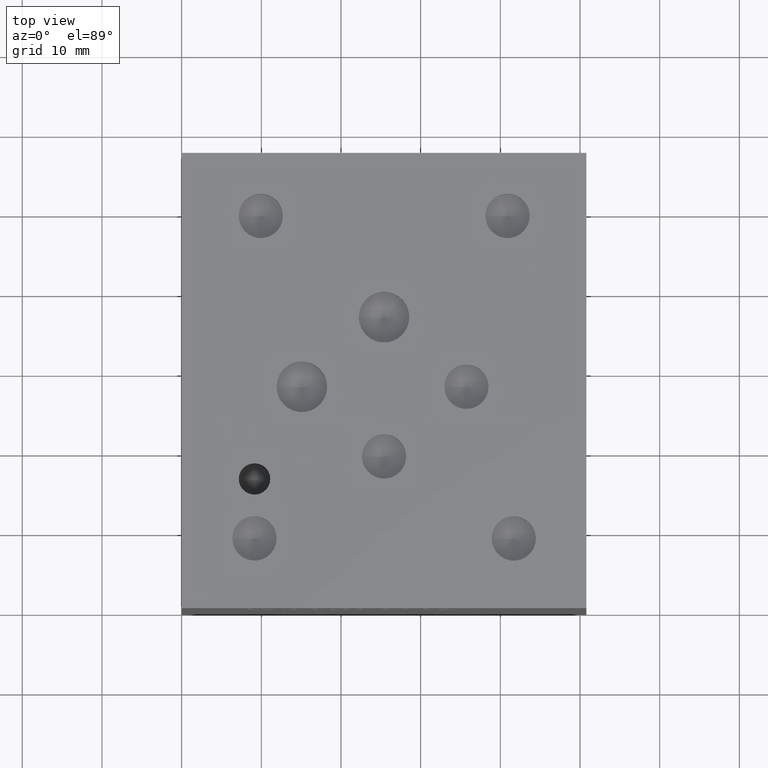
[diagram: clean part render]
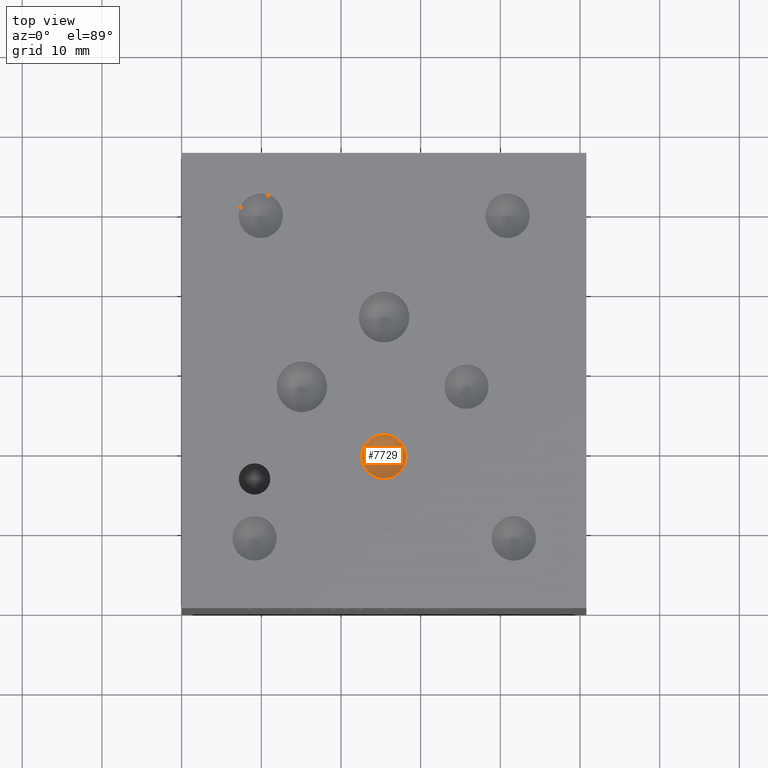
[diagram: same view with one face highlighted and labeled with its STEP entity id]
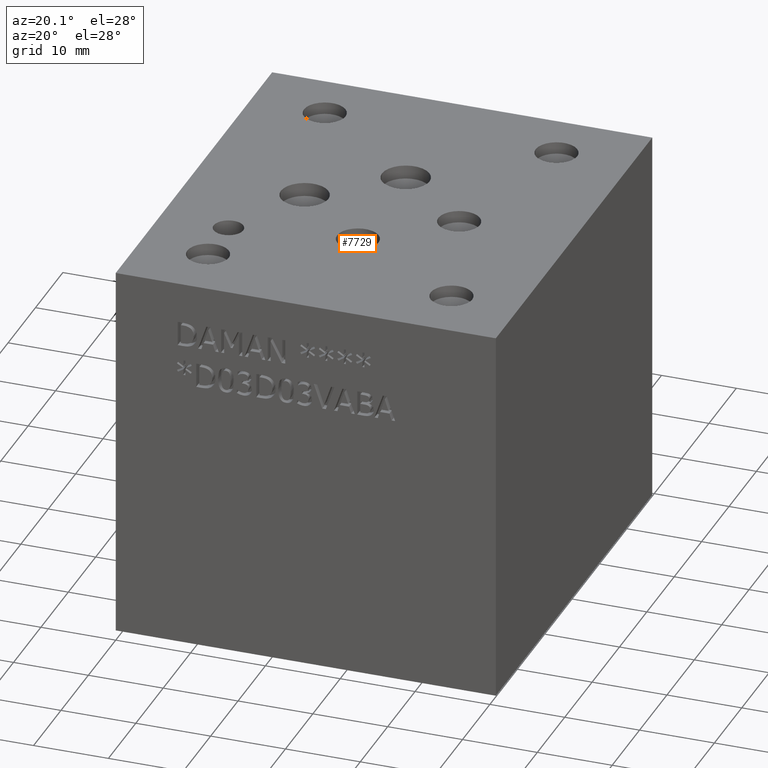
[diagram: same view with one face highlighted and labeled with its STEP entity id]
A machine part, top view. The second image highlights one B-rep face of the part: STEP entity #7729.
A second angle (auxiliary view) of the same face is appended — the face is thin or edge-on in the first view.
In plain terms, the highlighted conical surface has half-angle 60 deg.
Its self-contained STEP definition (entity closure, byte-faithful):
#96=CIRCLE('',#8093,2.7813);
#97=CIRCLE('',#8094,2.7813);
#132=CONICAL_SURFACE('',#8092,1.39065,1.0471975511966);
#862=FACE_OUTER_BOUND('',#1286,.T.);
#1286=EDGE_LOOP('',(#6661,#6662,#6663,#6664));
#2078=LINE('',#13043,#2854);
#2854=VECTOR('',#9558,1.39065);
#3566=VERTEX_POINT('',#13039);
#3567=VERTEX_POINT('',#13040);
#3568=VERTEX_POINT('',#13042);
#4616=EDGE_CURVE('',#3566,#3567,#96,.T.);
#4617=EDGE_CURVE('',#3567,#3568,#2078,.T.);
#4618=EDGE_CURVE('',#3567,#3566,#97,.T.);
#6661=ORIENTED_EDGE('',*,*,#4616,.T.);
#6662=ORIENTED_EDGE('',*,*,#4617,.T.);
#6663=ORIENTED_EDGE('',*,*,#4617,.F.);
#6664=ORIENTED_EDGE('',*,*,#4618,.T.);
#7729=ADVANCED_FACE('',(#862),#132,.F.);
#8092=AXIS2_PLACEMENT_3D('',#13038,#9554,#9555);
#8093=AXIS2_PLACEMENT_3D('',#13041,#9556,#9557);
#8094=AXIS2_PLACEMENT_3D('',#13044,#9559,#9560);
#9554=DIRECTION('center_axis',(0.,0.,1.));
#9555=DIRECTION('ref_axis',(1.,0.,0.));
#9556=DIRECTION('center_axis',(0.,0.,1.));
#9557=DIRECTION('ref_axis',(1.,0.,0.));
#9558=DIRECTION('',(0.866025403784439,1.06057523872491E-16,-0.5));
#9559=DIRECTION('center_axis',(0.,0.,1.));
#9560=DIRECTION('ref_axis',(1.,0.,0.));
#13038=CARTESIAN_POINT('Origin',(25.4,19.0246,48.3913278481514));
#13039=CARTESIAN_POINT('',(28.1813,19.0246,49.19422));
#13040=CARTESIAN_POINT('',(22.6187,19.0246,49.19422));
#13041=CARTESIAN_POINT('Origin',(25.4,19.0246,49.19422));
#13042=CARTESIAN_POINT('',(25.4,19.0246,47.5884356963029));
#13043=CARTESIAN_POINT('',(24.00935,19.0246,48.3913278481514));
#13044=CARTESIAN_POINT('Origin',(25.4,19.0246,49.19422));